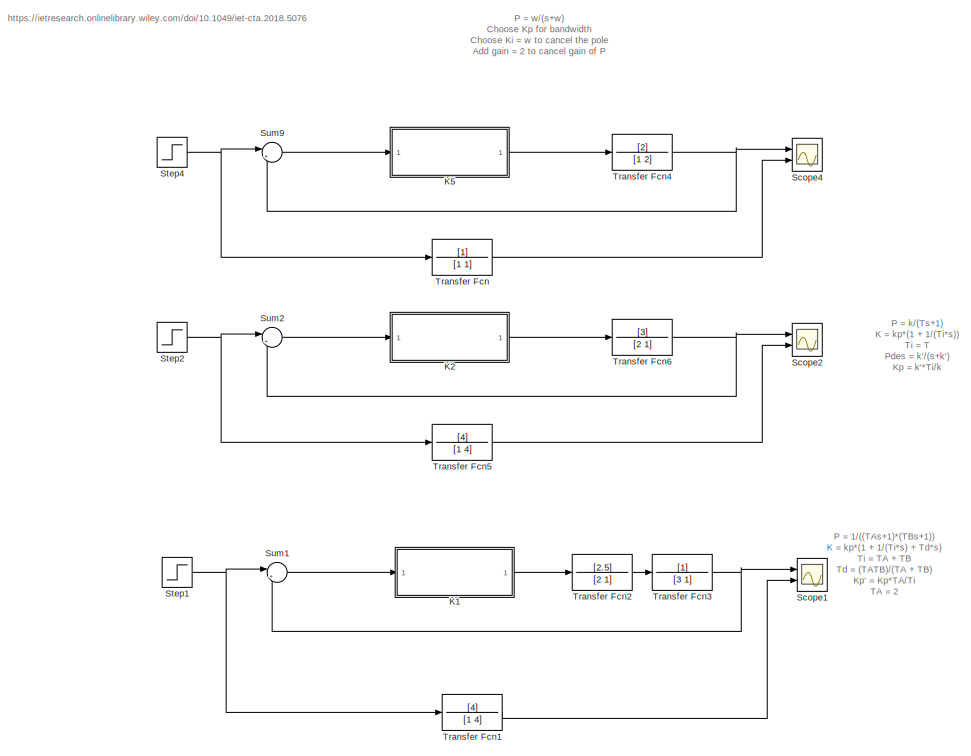
[diagram: root canvas - part 1/2, left side, full height]
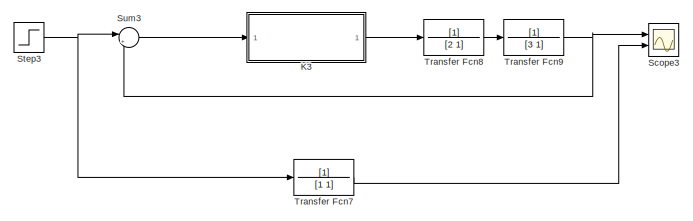
[diagram: root canvas - part 2/2, bottom right region]
MODEL slx_46c2ac774f9a
KIND model
CONFIG AbsTol = auto
CONFIG EnableMultiTasking = off
CONFIG FixedStep = 0.001
CONFIG MaxStep = auto
CONFIG MinStep = auto
CONFIG RelTol = 1e-3
CONFIG SampleTimeConstraint = Unconstrained
CONFIG Solver = FixedStepAuto
CONFIG SolverName = FixedStepAuto
CONFIG StartTime = 0.0
CONFIG StopTime = 10
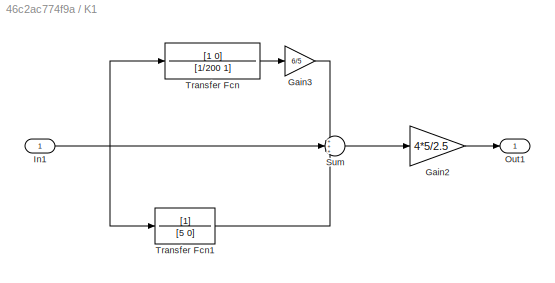
BLOCK [SubSystem] K1
  Ports = [1, 1]
  RequestExecContextInheritance = off
BLOCK [Gain] K1/Gain2
  Gain = 4*5/2.5
  OutDataTypeStr = Inherit: Inherit via internal rule
  ParamDataTypeStr = Inherit: Inherit via internal rule
  SaturateOnIntegerOverflow = off
BLOCK [Gain] K1/Gain3
  Gain = 6/5
  OutDataTypeStr = Inherit: Inherit via internal rule
  ParamDataTypeStr = Inherit: Inherit via internal rule
  SaturateOnIntegerOverflow = off
BLOCK [Inport] K1/In1
  IconDisplay = Port number
BLOCK [Outport] K1/Out1
  IconDisplay = Port number
BLOCK [Sum] K1/Sum
  IconShape = round
  InputSameDT = off
  Inputs = +++
  OutDataTypeStr = Inherit: Inherit via internal rule
  Ports = [3, 1]
  SaturateOnIntegerOverflow = off
BLOCK [TransferFcn] K1/Transfer Fcn
  Denominator = [1/200 1]
  Numerator = [1 0]
BLOCK [TransferFcn] K1/Transfer Fcn1
  Denominator = [5 0]
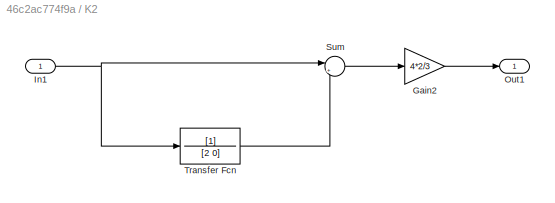
BLOCK [SubSystem] K2
  Ports = [1, 1]
  RequestExecContextInheritance = off
BLOCK [Gain] K2/Gain2
  Gain = 4*2/3
  OutDataTypeStr = Inherit: Inherit via internal rule
  ParamDataTypeStr = Inherit: Inherit via internal rule
  SaturateOnIntegerOverflow = off
BLOCK [Inport] K2/In1
  IconDisplay = Port number
BLOCK [Outport] K2/Out1
  IconDisplay = Port number
BLOCK [Sum] K2/Sum
  IconShape = round
  InputSameDT = off
  Inputs = |++
  OutDataTypeStr = Inherit: Inherit via internal rule
  Ports = [2, 1]
  SaturateOnIntegerOverflow = off
BLOCK [TransferFcn] K2/Transfer Fcn
  Denominator = [2 0]
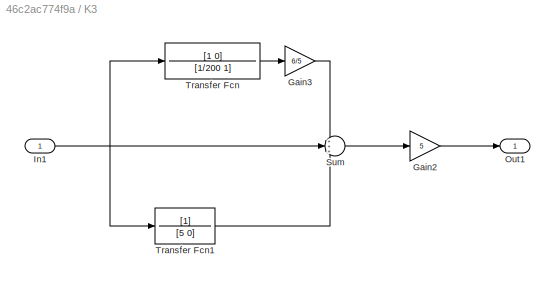
BLOCK [SubSystem] K3
  Commented = on
  Ports = [1, 1]
  RequestExecContextInheritance = off
BLOCK [Gain] K3/Gain2
  Gain = 5
  OutDataTypeStr = Inherit: Inherit via internal rule
  ParamDataTypeStr = Inherit: Inherit via internal rule
  SaturateOnIntegerOverflow = off
BLOCK [Gain] K3/Gain3
  Gain = 6/5
  OutDataTypeStr = Inherit: Inherit via internal rule
  ParamDataTypeStr = Inherit: Inherit via internal rule
  SaturateOnIntegerOverflow = off
BLOCK [Inport] K3/In1
  IconDisplay = Port number
BLOCK [Outport] K3/Out1
  IconDisplay = Port number
BLOCK [Sum] K3/Sum
  IconShape = round
  InputSameDT = off
  Inputs = +++
  OutDataTypeStr = Inherit: Inherit via internal rule
  Ports = [3, 1]
  SaturateOnIntegerOverflow = off
BLOCK [TransferFcn] K3/Transfer Fcn
  Denominator = [1/200 1]
  Numerator = [1 0]
BLOCK [TransferFcn] K3/Transfer Fcn1
  Denominator = [5 0]
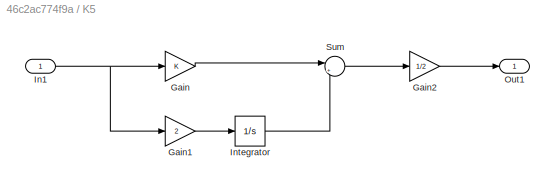
BLOCK [SubSystem] K5
  Ports = [1, 1]
  RequestExecContextInheritance = off
BLOCK [Gain] K5/Gain
  OutDataTypeStr = Inherit: Inherit via internal rule
  ParamDataTypeStr = Inherit: Inherit via internal rule
  SaturateOnIntegerOverflow = off
BLOCK [Gain] K5/Gain1
  Gain = 2
  OutDataTypeStr = Inherit: Inherit via internal rule
  ParamDataTypeStr = Inherit: Inherit via internal rule
  SaturateOnIntegerOverflow = off
BLOCK [Gain] K5/Gain2
  Gain = 1/2
  OutDataTypeStr = Inherit: Inherit via internal rule
  ParamDataTypeStr = Inherit: Inherit via internal rule
  SaturateOnIntegerOverflow = off
BLOCK [Inport] K5/In1
  IconDisplay = Port number
BLOCK [Integrator] K5/Integrator
  Ports = [1, 1]
BLOCK [Outport] K5/Out1
  IconDisplay = Port number
BLOCK [Sum] K5/Sum
  IconShape = round
  InputSameDT = off
  Inputs = |++
  OutDataTypeStr = Inherit: Inherit via internal rule
  Ports = [2, 1]
  SaturateOnIntegerOverflow = off
BLOCK [Scope] Scope1
  Floating = off
  NumInputPorts = 2
  Ports = [2]
  ScopeSpecificationString = Simulink.scopes.TimeScopeBlockCfg('CurrentConfiguration', extmgr.ConfigurationSet(extmgr.Configuration('Core','General UI',true),extmgr.Configuration('Core','Source UI',true),extmgr.Configuration('Sources','WiredSimulink',true,'DataLoggingVariableName','ScopeData1'),extmgr.Configuration('Visuals','Time Domain',true,'SerializedDisplays',{struct('MinYLimReal','-0.12501','MaxYLimReal','1.12505','YLab...<+1462ch>
BLOCK [Scope] Scope2
  Floating = off
  NumInputPorts = 2
  Ports = [2]
  ScopeSpecificationString = Simulink.scopes.TimeScopeBlockCfg('CurrentConfiguration', extmgr.ConfigurationSet(extmgr.Configuration('Core','General UI',true),extmgr.Configuration('Core','Source UI',true),extmgr.Configuration('Sources','WiredSimulink',true,'DataLoggingVariableName','ScopeData2'),extmgr.Configuration('Visuals','Time Domain',true,'SerializedDisplays',{struct('MinYLimReal','-0.125','MaxYLimReal','1.125','YLabelRe...<+1431ch>
BLOCK [Scope] Scope3
  Commented = on
  Floating = off
  NumInputPorts = 2
  Ports = [2]
  ScopeSpecificationString = Simulink.scopes.TimeScopeBlockCfg('CurrentConfiguration', extmgr.ConfigurationSet(extmgr.Configuration('Core','General UI',true),extmgr.Configuration('Core','Source UI',true),extmgr.Configuration('Sources','WiredSimulink',true,'DataLoggingVariableName','ScopeData3'),extmgr.Configuration('Visuals','Time Domain',true,'SerializedDisplays',{struct('MinYLimReal','-0.12501','MaxYLimReal','1.12505','YLab...<+1462ch>
BLOCK [Scope] Scope4
  Floating = off
  NumInputPorts = 2
  Ports = [2]
  ScopeSpecificationString = Simulink.scopes.TimeScopeBlockCfg('CurrentConfiguration', extmgr.ConfigurationSet(extmgr.Configuration('Core','General UI',true),extmgr.Configuration('Core','Source UI',true),extmgr.Configuration('Sources','WiredSimulink',true,'DataLoggingVariableName','ScopeData1'),extmgr.Configuration('Visuals','Time Domain',true,'SerializedDisplays',{struct('MinYLimReal','-0.12498','MaxYLimReal','1.12486','YLab...<+1416ch>
BLOCK [Step] Step1
  SampleTime = 0
BLOCK [Step] Step2
  SampleTime = 0
BLOCK [Step] Step3
  Commented = on
  SampleTime = 0
BLOCK [Step] Step4
  SampleTime = 0
BLOCK [Sum] Sum1
  IconShape = round
  InputSameDT = off
  Inputs = |+-
  OutDataTypeStr = Inherit: Inherit via internal rule
  Ports = [2, 1]
  SaturateOnIntegerOverflow = off
BLOCK [Sum] Sum2
  IconShape = round
  InputSameDT = off
  Inputs = |+-
  OutDataTypeStr = Inherit: Inherit via internal rule
  Ports = [2, 1]
  SaturateOnIntegerOverflow = off
BLOCK [Sum] Sum3
  Commented = on
  IconShape = round
  InputSameDT = off
  Inputs = |+-
  OutDataTypeStr = Inherit: Inherit via internal rule
  Ports = [2, 1]
  SaturateOnIntegerOverflow = off
BLOCK [Sum] Sum9
  IconShape = round
  InputSameDT = off
  Inputs = |+-
  OutDataTypeStr = Inherit: Inherit via internal rule
  Ports = [2, 1]
  SaturateOnIntegerOverflow = off
BLOCK [TransferFcn] Transfer Fcn
  Denominator = [1 1]
BLOCK [TransferFcn] Transfer Fcn1
  Denominator = [1 4]
  Numerator = [4]
BLOCK [TransferFcn] Transfer Fcn2
  Denominator = [2 1]
  Numerator = [2.5]
BLOCK [TransferFcn] Transfer Fcn3
  Denominator = [3 1]
BLOCK [TransferFcn] Transfer Fcn4
  Denominator = [1 2]
  Numerator = [2]
BLOCK [TransferFcn] Transfer Fcn5
  Denominator = [1 4]
  Numerator = [4]
BLOCK [TransferFcn] Transfer Fcn6
  Denominator = [2 1]
  Numerator = [3]
BLOCK [TransferFcn] Transfer Fcn7
  Commented = on
  Denominator = [1 1]
BLOCK [TransferFcn] Transfer Fcn8
  Commented = on
  Denominator = [2 1]
BLOCK [TransferFcn] Transfer Fcn9
  Commented = on
  Denominator = [3 1]
ANNOTATION (root): P = 1/((TAs+1)*(TBs+1)) K = kp*(1 + 1/(Ti*s) + Td*s) Ti = TA + TB Td = (TATB)/(TA + TB) Kp' = Kp*TA/Ti TA = 2 TB = 3 Ti = 5 Td = (2*3)/(2+3) = 6/5 Kp' = Kp*2/5
ANNOTATION (root): P = k/(Ts+1) K = kp*(1 + 1/(Ti*s)) Ti = T Pdes = k'/(s+k') Kp = k'*Ti/k
ANNOTATION (root): P = w/(s+w) Choose Kp for bandwidth Choose Ki = w to cancel the pole Add gain = 2 to cancel gain of P
ANNOTATION (root): https://ietresearch.onlinelibrary.wiley.com/doi/10.1049/iet-cta.2018.5076
LINE K1/Gain2:1 -> K1/Out1:1
LINE K1/Gain3:1 -> K1/Sum:1
NET K1/In1:1 -> K1/Sum:2, K1/Transfer Fcn1:1, K1/Transfer Fcn:1
LINE K1/Sum:1 -> K1/Gain2:1
LINE K1/Transfer Fcn1:1 -> K1/Sum:3
LINE K1/Transfer Fcn:1 -> K1/Gain3:1
LINE K1:1 -> Transfer Fcn2:1
LINE K2/Gain2:1 -> K2/Out1:1
NET K2/In1:1 -> K2/Sum:1, K2/Transfer Fcn:1
LINE K2/Sum:1 -> K2/Gain2:1
LINE K2/Transfer Fcn:1 -> K2/Sum:2
LINE K2:1 -> Transfer Fcn6:1
LINE K3/Gain2:1 -> K3/Out1:1
LINE K3/Gain3:1 -> K3/Sum:1
NET K3/In1:1 -> K3/Sum:2, K3/Transfer Fcn1:1, K3/Transfer Fcn:1
LINE K3/Sum:1 -> K3/Gain2:1
LINE K3/Transfer Fcn1:1 -> K3/Sum:3
LINE K3/Transfer Fcn:1 -> K3/Gain3:1
LINE K3:1 -> Transfer Fcn8:1
LINE K5/Gain1:1 -> K5/Integrator:1
LINE K5/Gain2:1 -> K5/Out1:1
LINE K5/Gain:1 -> K5/Sum:1
NET K5/In1:1 -> K5/Gain1:1, K5/Gain:1
LINE K5/Integrator:1 -> K5/Sum:2
LINE K5/Sum:1 -> K5/Gain2:1
LINE K5:1 -> Transfer Fcn4:1
NET Step1:1 -> Sum1:1, Transfer Fcn1:1
NET Step2:1 -> Sum2:1, Transfer Fcn5:1
NET Step3:1 -> Sum3:1, Transfer Fcn7:1
NET Step4:1 -> Sum9:1, Transfer Fcn:1
LINE Sum1:1 -> K1:1
LINE Sum2:1 -> K2:1
LINE Sum3:1 -> K3:1
LINE Sum9:1 -> K5:1
LINE Transfer Fcn1:1 -> Scope1:2
LINE Transfer Fcn2:1 -> Transfer Fcn3:1
NET Transfer Fcn3:1 -> Scope1:1, Sum1:2
NET Transfer Fcn4:1 -> Scope4:1, Sum9:2
LINE Transfer Fcn5:1 -> Scope2:2
NET Transfer Fcn6:1 -> Scope2:1, Sum2:2
LINE Transfer Fcn7:1 -> Scope3:2
LINE Transfer Fcn8:1 -> Transfer Fcn9:1
NET Transfer Fcn9:1 -> Scope3:1, Sum3:2
LINE Transfer Fcn:1 -> Scope4:2
note: NET lines group one-source signal fan-out (src -> all destinations, sorted); 1:1 wires keep LINE
